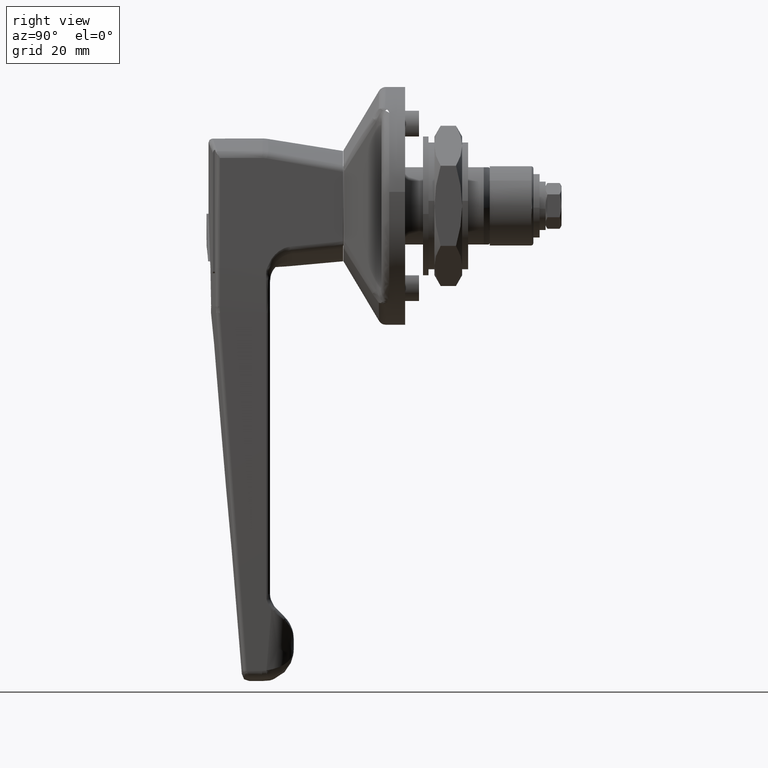
[diagram: clean part render]
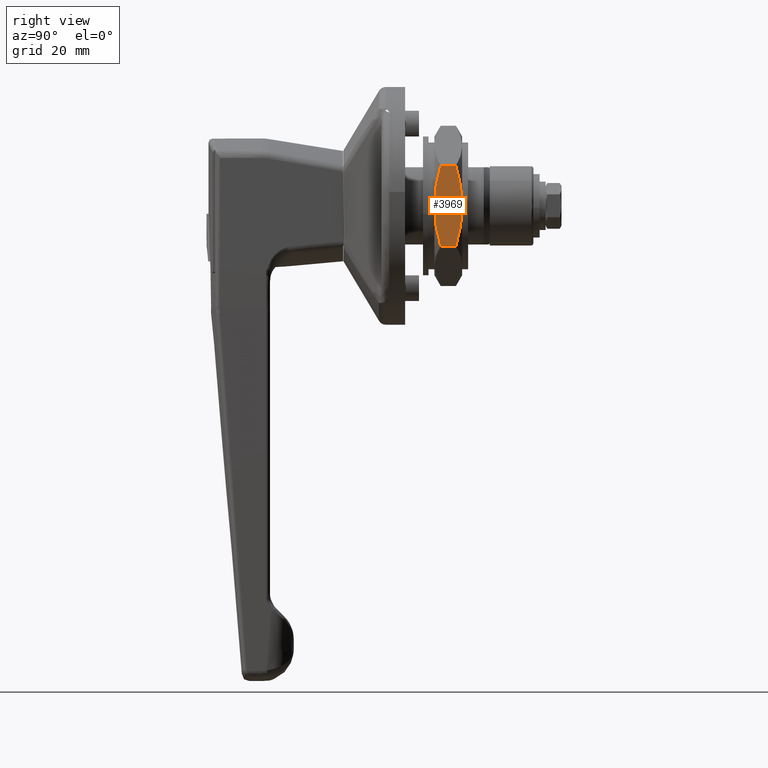
[diagram: same view with one face highlighted and labeled with its STEP entity id]
A machine part, right view. The second image highlights one B-rep face of the part: STEP entity #3969.
In plain terms, the highlighted face is a freeform B-spline surface patch.
Its self-contained STEP definition (entity closure, byte-faithful):
#3303=CARTESIAN_POINT('',(53.967903000000000,-17.500000000000000,0.0));
#3304=VERTEX_POINT('',#3303);
#3318=CARTESIAN_POINT('',(55.530939729425100,-17.499999999999751,10.103629930245400));
#3319=VERTEX_POINT('',#3318);
#3320=CARTESIAN_POINT('',(55.530939729425029,-17.499999999999751,10.103629930245420));
#3321=CARTESIAN_POINT('',(55.295202857449283,-17.499999999999751,9.287013313198116));
#3322=CARTESIAN_POINT('',(55.079289835988391,-17.499999999999751,8.465023719538598));
#3323=CARTESIAN_POINT('',(54.696605910183578,-17.499999999999751,6.807725250693233));
#3324=CARTESIAN_POINT('',(54.529866097327456,-17.499999999999751,5.972407948595743));
#3325=CARTESIAN_POINT('',(54.324437628911383,-17.499999999999758,4.707321769147185));
#3326=CARTESIAN_POINT('',(54.232900038905584,-17.499999999999758,4.071749406787085));
#3327=CARTESIAN_POINT('',(54.159565116403577,-17.499999999999751,3.431243466729510));
#3328=CARTESIAN_POINT('',(54.114871526884720,-17.499999999999751,3.003102142496589));
#3329=CARTESIAN_POINT('',(54.094604809168672,-17.499999999999751,2.788233192458741));
#3330=CARTESIAN_POINT('',(54.004362271149027,-17.499999999999751,1.713859963081742));
#3331=CARTESIAN_POINT('',(53.967990287357338,-17.499999999999758,0.857092843290904));
#3332=CARTESIAN_POINT('',(53.967903052584489,-17.499999999999758,0.002061647338076));
#3333=CARTESIAN_POINT('',(53.967903000259767,-17.499999999999758,0.001030821996109));
#3334=CARTESIAN_POINT('',(53.967903000000000,-17.500000000000000,0.0));
#3335=B_SPLINE_CURVE_WITH_KNOTS('',3,(#3320,#3321,#3322,#3323,#3324,#3325,#3326,#3327,#3328,#3329,#3330,#3331,#3332,#3333,#3334),.UNSPECIFIED.,.F.,.U.,(4,2,2,1,2,2,2,4),(0.499849117545516,0.624849117545516,0.749849117545517,0.812349117545517,0.843599117545517,0.874849117545517,0.999849117545517,1.0),.UNSPECIFIED.);
#3336=EDGE_CURVE('',#3319,#3304,#3335,.T.);
#3385=CARTESIAN_POINT('',(55.530939769697902,-17.499999999999751,-10.103630069754500));
#3386=VERTEX_POINT('',#3385);
#3400=CARTESIAN_POINT('',(53.967903000000000,-17.500000000000000,0.0));
#3401=CARTESIAN_POINT('',(53.967903429470113,-17.499999999999751,-0.852962868579037));
#3402=CARTESIAN_POINT('',(54.004084732238702,-17.499999999999758,-1.703166912560749));
#3403=CARTESIAN_POINT('',(54.145331133474912,-17.499999999999751,-3.399353369875792));
#3404=CARTESIAN_POINT('',(54.250428220917740,-17.499999999999758,-4.245333344020602));
#3405=CARTESIAN_POINT('',(54.522435876987593,-17.499999999999751,-5.932579958020233));
#3406=CARTESIAN_POINT('',(54.689329895120117,-17.499999999999751,-6.774035406938726));
#3407=CARTESIAN_POINT('',(55.075832206279323,-17.499999999999751,-8.452169503385427));
#3408=CARTESIAN_POINT('',(55.293663248892507,-17.499999999999758,-9.281679960320163));
#3409=CARTESIAN_POINT('',(55.530939769697838,-17.499999999999751,-10.103630069754530));
#3410=B_SPLINE_CURVE_WITH_KNOTS('',3,(#3400,#3401,#3402,#3403,#3404,#3405,#3406,#3407,#3408,#3409),.UNSPECIFIED.,.F.,.U.,(4,2,2,2,4),(0.0,0.124849117513819,0.249849117513819,0.374849117513819,0.499849117513819),.UNSPECIFIED.);
#3411=EDGE_CURVE('',#3304,#3386,#3410,.T.);
#3681=CARTESIAN_POINT('',(60.967903000000092,-17.499999999999751,0.0));
#3682=VERTEX_POINT('',#3681);
#3683=CARTESIAN_POINT('',(59.404866270574999,-17.499999999999751,10.103629930245400));
#3684=VERTEX_POINT('',#3683);
#3685=CARTESIAN_POINT('',(60.967903000000092,-17.499999999999751,0.0));
#3686=CARTESIAN_POINT('',(60.967902999740332,-17.499999999999758,0.001030821996109));
#3687=CARTESIAN_POINT('',(60.967902947415617,-17.499999999999758,0.002061647338076));
#3688=CARTESIAN_POINT('',(60.967815712642789,-17.499999999999758,0.857092843290904));
#3689=CARTESIAN_POINT('',(60.931443728851093,-17.499999999999751,1.713859963081742));
#3690=CARTESIAN_POINT('',(60.841201190831420,-17.499999999999751,2.788233192458741));
#3691=CARTESIAN_POINT('',(60.820934473115379,-17.499999999999751,3.003102142496589));
#3692=CARTESIAN_POINT('',(60.776240883596500,-17.499999999999751,3.431243466729510));
#3693=CARTESIAN_POINT('',(60.702905961094551,-17.499999999999758,4.071749406787085));
#3694=CARTESIAN_POINT('',(60.611368371088751,-17.499999999999758,4.707321769147185));
#3695=CARTESIAN_POINT('',(60.405939902672642,-17.499999999999751,5.972407948595743));
#3696=CARTESIAN_POINT('',(60.239200089816507,-17.499999999999751,6.807725250693233));
#3697=CARTESIAN_POINT('',(59.856516164011722,-17.499999999999751,8.465023719538598));
#3698=CARTESIAN_POINT('',(59.640603142550852,-17.499999999999751,9.287013313198116));
#3699=CARTESIAN_POINT('',(59.404866270575070,-17.499999999999751,10.103629930245420));
#3700=B_SPLINE_CURVE_WITH_KNOTS('',3,(#3685,#3686,#3687,#3688,#3689,#3690,#3691,#3692,#3693,#3694,#3695,#3696,#3697,#3698,#3699),.UNSPECIFIED.,.F.,.U.,(4,2,2,2,1,2,2,4),(0.499849117545516,0.500000000000000,0.625000000000000,0.656250000000000,0.687500000000000,0.750000000000000,0.875000000000000,1.0),.UNSPECIFIED.);
#3701=EDGE_CURVE('',#3682,#3684,#3700,.T.);
#3808=CARTESIAN_POINT('',(59.404866230302197,-17.499999999999751,-10.103630069754500));
#3809=VERTEX_POINT('',#3808);
#3838=CARTESIAN_POINT('',(59.404866230302261,-17.499999999999751,-10.103630069754530));
#3839=CARTESIAN_POINT('',(59.642142751107592,-17.499999999999758,-9.281679960320163));
#3840=CARTESIAN_POINT('',(59.859973793720791,-17.499999999999751,-8.452169503385427));
#3841=CARTESIAN_POINT('',(60.246476104879967,-17.499999999999751,-6.774035406938726));
#3842=CARTESIAN_POINT('',(60.413370123012513,-17.499999999999751,-5.932579958020233));
#3843=CARTESIAN_POINT('',(60.685377779082380,-17.499999999999758,-4.245333344020602));
#3844=CARTESIAN_POINT('',(60.790474866525187,-17.499999999999751,-3.399353369875792));
#3845=CARTESIAN_POINT('',(60.931721267761397,-17.499999999999758,-1.703166912560749));
#3846=CARTESIAN_POINT('',(60.967902570529994,-17.499999999999751,-0.852962868579037));
#3847=CARTESIAN_POINT('',(60.967903000000092,-17.499999999999751,0.0));
#3848=B_SPLINE_CURVE_WITH_KNOTS('',3,(#3838,#3839,#3840,#3841,#3842,#3843,#3844,#3845,#3846,#3847),.UNSPECIFIED.,.F.,.U.,(4,2,2,2,4),(0.0,0.125000000000000,0.250000000000000,0.375000000000000,0.499849117513819),.UNSPECIFIED.);
#3849=EDGE_CURVE('',#3809,#3682,#3848,.T.);
#3935=CARTESIAN_POINT('',(55.530939769697902,-17.499999999999751,-10.103630069754500));
#3936=CARTESIAN_POINT('',(59.404866230302197,-17.499999999999751,-10.103630069754500));
#3937=QUASI_UNIFORM_CURVE('',1,(#3935,#3936),.UNSPECIFIED.,.F.,.U.);
#3938=EDGE_CURVE('',#3386,#3809,#3937,.T.);
#3952=CARTESIAN_POINT('',(53.618253144989332,-17.499999999999751,11.112982717771100));
#3953=CARTESIAN_POINT('',(53.618253144989332,-17.499999999999751,-11.112983218614170));
#3954=CARTESIAN_POINT('',(61.317553167935152,-17.499999999999751,11.112982717771100));
#3955=CARTESIAN_POINT('',(61.317553167935152,-17.499999999999751,-11.112983218614170));
#3956=B_SPLINE_SURFACE_WITH_KNOTS('',1,1,((#3952,#3954),(#3953,#3955)),.UNSPECIFIED.,.F.,.F.,.U.,(2,2),(2,2),(0.0,22.225965936385279),(0.0,7.699300022945814),.UNSPECIFIED.);
#3957=CARTESIAN_POINT('',(55.530939729425100,-17.499999999999751,10.103629930245400));
#3958=CARTESIAN_POINT('',(59.404866270574999,-17.499999999999751,10.103629930245400));
#3959=QUASI_UNIFORM_CURVE('',1,(#3957,#3958),.UNSPECIFIED.,.F.,.U.);
#3960=EDGE_CURVE('',#3319,#3684,#3959,.T.);
#3961=ORIENTED_EDGE('',*,*,#3960,.F.);
#3962=ORIENTED_EDGE('',*,*,#3336,.T.);
#3963=ORIENTED_EDGE('',*,*,#3411,.T.);
#3964=ORIENTED_EDGE('',*,*,#3938,.T.);
#3965=ORIENTED_EDGE('',*,*,#3849,.T.);
#3966=ORIENTED_EDGE('',*,*,#3701,.T.);
#3967=EDGE_LOOP('',(#3961,#3962,#3963,#3964,#3965,#3966));
#3968=FACE_OUTER_BOUND('',#3967,.T.);
#3969=ADVANCED_FACE('',(#3968),#3956,.T.);